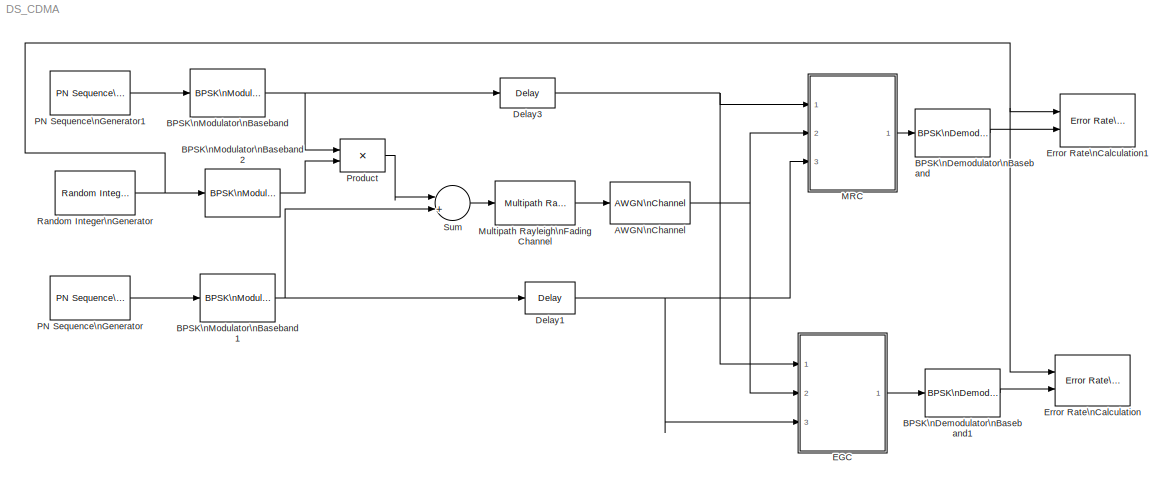
MODEL DS_CDMA
KIND model
BLOCK [Reference] AWGN\nChannel  REF=commchan2/AWGN\nChannel
  EbNodB = 10
  EsNodB = 10
  Ports = [1, 1]
  Ps = 1
  SNRdB = SNR
  ShowPortLabels = on
  SourceBlock = commchan2/AWGN\nChannel
  SourceType = AWGN Channel
  Tsym = 1e-4/32
  bitsPerSym = 1
  noiseMode = Signal to noise ratio  (SNR)
  seed = 67
  variance = 1
BLOCK [Reference] BPSK\nDemodulator\nBaseband  REF=commdigbbndpm2/BPSK\nDemodulator\nBaseband
  Ph = 0
  Ports = [1, 1]
  ShowPortLabels = on
  SourceBlock = commdigbbndpm2/BPSK\nDemodulator\nBaseband
  SourceType = BPSK Demodulator Baseband
  numSamp = 1
BLOCK [Reference] BPSK\nDemodulator\nBaseband1  REF=commdigbbndpm2/BPSK\nDemodulator\nBaseband
  Ph = 0
  Ports = [1, 1]
  ShowPortLabels = on
  SourceBlock = commdigbbndpm2/BPSK\nDemodulator\nBaseband
  SourceType = BPSK Demodulator Baseband
  numSamp = 1
BLOCK [Reference] BPSK\nModulator\nBaseband  REF=commdigbbndpm2/BPSK\nModulator\nBaseband
  Ph = 0
  Ports = [1, 1]
  ShowPortLabels = on
  SourceBlock = commdigbbndpm2/BPSK\nModulator\nBaseband
  SourceType = BPSK Modulator Baseband
  numSamp = 1
BLOCK [Reference] BPSK\nModulator\nBaseband1  REF=commdigbbndpm2/BPSK\nModulator\nBaseband
  Ph = 0
  Ports = [1, 1]
  ShowPortLabels = on
  SourceBlock = commdigbbndpm2/BPSK\nModulator\nBaseband
  SourceType = BPSK Modulator Baseband
  numSamp = 1
BLOCK [Reference] BPSK\nModulator\nBaseband2  REF=commdigbbndpm2/BPSK\nModulator\nBaseband
  Ph = 0
  Ports = [1, 1]
  ShowPortLabels = on
  SourceBlock = commdigbbndpm2/BPSK\nModulator\nBaseband
  SourceType = BPSK Modulator Baseband
  numSamp = 1
BLOCK [Reference] Delay1  REF=dspsigops/Delay
  Ports = [1, 1]
  SourceBlock = dspsigops/Delay
  SourceType = Delay
  delay = 32
  dif_ic_for_ch = off
  dif_ic_for_dly = off
  dly_unit = Samples
  ic = 0
  ic_detail = off
  reset_popup = None
BLOCK [Reference] Delay3  REF=dspsigops/Delay
  Ports = [1, 1]
  SourceBlock = dspsigops/Delay
  SourceType = Delay
  delay = 32
  dif_ic_for_ch = off
  dif_ic_for_dly = off
  dly_unit = Samples
  ic = 0
  ic_detail = off
  reset_popup = None
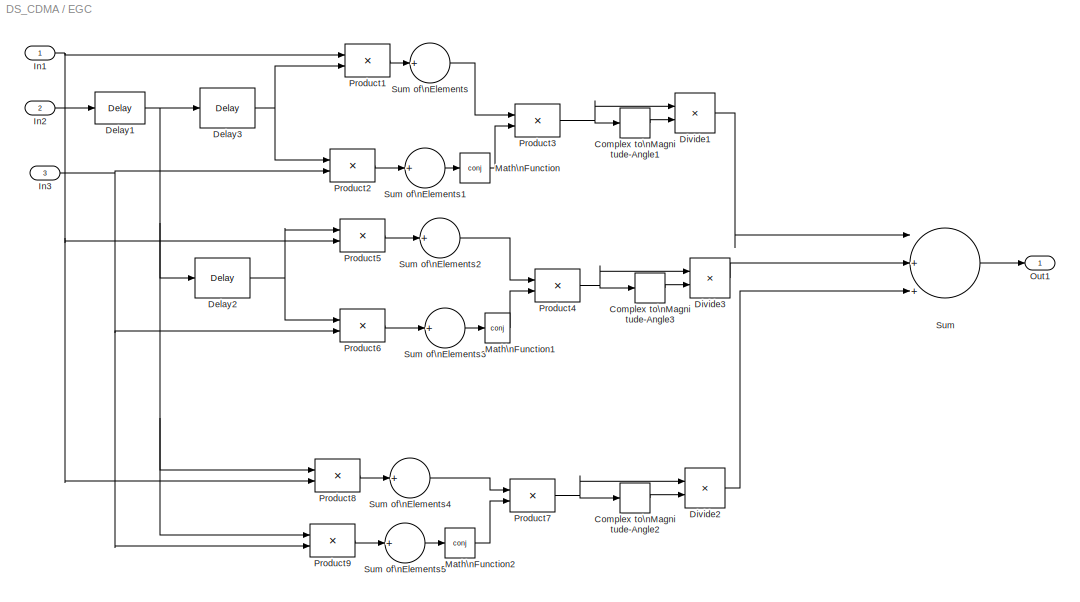
BLOCK [SubSystem] EGC
  MaskIconFrame = on
  MaskIconOpaque = on
  MaskIconRotate = none
  MaskIconUnits = autoscale
  MinAlgLoopOccurrences = off
  Ports = [3, 1]
  RTWSystemCode = Auto
  TreatAsAtomicUnit = off
BLOCK [ComplexToMagnitudeAngle] EGC/Complex to\nMagnitude-Angle1
  Output = Magnitude
  Ports = [1, 1]
BLOCK [ComplexToMagnitudeAngle] EGC/Complex to\nMagnitude-Angle2
  Output = Magnitude
  Ports = [1, 1]
BLOCK [ComplexToMagnitudeAngle] EGC/Complex to\nMagnitude-Angle3
  Output = Magnitude
  Ports = [1, 1]
BLOCK [Reference] EGC/Delay1  REF=dspsigops/Delay
  Ports = [1, 1]
  SourceBlock = dspsigops/Delay
  SourceType = Delay
  delay = 16
  dif_ic_for_ch = off
  dif_ic_for_dly = off
  dly_unit = Samples
  ic = 0
  ic_detail = off
  reset_popup = None
BLOCK [Reference] EGC/Delay2  REF=dspsigops/Delay
  Ports = [1, 1]
  SourceBlock = dspsigops/Delay
  SourceType = Delay
  delay = 8
  dif_ic_for_ch = off
  dif_ic_for_dly = off
  dly_unit = Samples
  ic = 0
  ic_detail = off
  reset_popup = None
BLOCK [Reference] EGC/Delay3  REF=dspsigops/Delay
  Ports = [1, 1]
  SourceBlock = dspsigops/Delay
  SourceType = Delay
  delay = 16
  dif_ic_for_ch = off
  dif_ic_for_dly = off
  dly_unit = Samples
  ic = 0
  ic_detail = off
  reset_popup = None
BLOCK [Product] EGC/Divide1
  InputSameDT = off
  Inputs = */
  OutScaling = 2^-10
  Ports = [2, 1]
  RndMeth = Floor
  SaturateOnIntegerOverflow = off
BLOCK [Product] EGC/Divide2
  InputSameDT = off
  Inputs = */
  OutScaling = 2^-10
  Ports = [2, 1]
  RndMeth = Floor
  SaturateOnIntegerOverflow = off
BLOCK [Product] EGC/Divide3
  InputSameDT = off
  Inputs = */
  OutScaling = 2^-10
  Ports = [2, 1]
  RndMeth = Floor
  SaturateOnIntegerOverflow = off
BLOCK [Inport] EGC/In1
  IconDisplay = Port number
  LatchInput = off
  Port = 1
BLOCK [Inport] EGC/In2
  IconDisplay = Port number
  LatchInput = off
  Port = 2
BLOCK [Inport] EGC/In3
  IconDisplay = Port number
  LatchInput = off
  Port = 3
BLOCK [Math] EGC/Math\nFunction
  Operator = conj
  Ports = [1, 1]
BLOCK [Math] EGC/Math\nFunction1
  Operator = conj
  Ports = [1, 1]
BLOCK [Math] EGC/Math\nFunction2
  Operator = conj
  Ports = [1, 1]
BLOCK [Outport] EGC/Out1
  BusOutputAsStruct = off
  IconDisplay = Port number
BLOCK [Product] EGC/Product1
  InputSameDT = off
  Ports = [2, 1]
  RndMeth = Floor
BLOCK [Product] EGC/Product2
  InputSameDT = off
  Ports = [2, 1]
  RndMeth = Floor
BLOCK [Product] EGC/Product3
  InputSameDT = off
  Ports = [2, 1]
  RndMeth = Floor
BLOCK [Product] EGC/Product4
  InputSameDT = off
  Ports = [2, 1]
  RndMeth = Floor
BLOCK [Product] EGC/Product5
  InputSameDT = off
  Ports = [2, 1]
  RndMeth = Floor
BLOCK [Product] EGC/Product6
  InputSameDT = off
  Ports = [2, 1]
  RndMeth = Floor
BLOCK [Product] EGC/Product7
  InputSameDT = off
  Ports = [2, 1]
  RndMeth = Floor
BLOCK [Product] EGC/Product8
  InputSameDT = off
  Ports = [2, 1]
  RndMeth = Floor
BLOCK [Product] EGC/Product9
  InputSameDT = off
  Ports = [2, 1]
  RndMeth = Floor
BLOCK [Sum] EGC/Sum
  InputSameDT = off
  Inputs = |+++
  Ports = [3, 1]
BLOCK [Sum] EGC/Sum of\nElements
  InputSameDT = off
  Inputs = +
  OutScaling = 2^-10
  Ports = [1, 1]
  SaturateOnIntegerOverflow = off
BLOCK [Sum] EGC/Sum of\nElements1
  InputSameDT = off
  Inputs = +
  OutScaling = 2^-10
  Ports = [1, 1]
  SaturateOnIntegerOverflow = off
BLOCK [Sum] EGC/Sum of\nElements2
  InputSameDT = off
  Inputs = +
  OutScaling = 2^-10
  Ports = [1, 1]
  SaturateOnIntegerOverflow = off
BLOCK [Sum] EGC/Sum of\nElements3
  InputSameDT = off
  Inputs = +
  OutScaling = 2^-10
  Ports = [1, 1]
  SaturateOnIntegerOverflow = off
BLOCK [Sum] EGC/Sum of\nElements4
  InputSameDT = off
  Inputs = +
  OutScaling = 2^-10
  Ports = [1, 1]
  SaturateOnIntegerOverflow = off
BLOCK [Sum] EGC/Sum of\nElements5
  InputSameDT = off
  Inputs = +
  OutScaling = 2^-10
  Ports = [1, 1]
  SaturateOnIntegerOverflow = off
BLOCK [Reference] Error Rate\nCalculation  REF=commsink2/Error Rate\nCalculation
  N = 1
  PMode = Workspace
  Ports = [2]
  RsMode2 = off
  SourceBlock = commsink2/Error Rate\nCalculation
  SourceType = Error Rate Calculation
  WsName = BitErrorRate2
  cp_mode = Entire frame
  maxBits = 1e6
  numErr = 100
  st_delay = 0
  stop = off
  subframe = []
BLOCK [Reference] Error Rate\nCalculation1  REF=commsink2/Error Rate\nCalculation
  N = 1
  PMode = Workspace
  Ports = [2]
  RsMode2 = off
  SourceBlock = commsink2/Error Rate\nCalculation
  SourceType = Error Rate Calculation
  WsName = BitErrorRate1
  cp_mode = Entire frame
  maxBits = 1e6
  numErr = 100
  st_delay = 0
  stop = off
  subframe = []
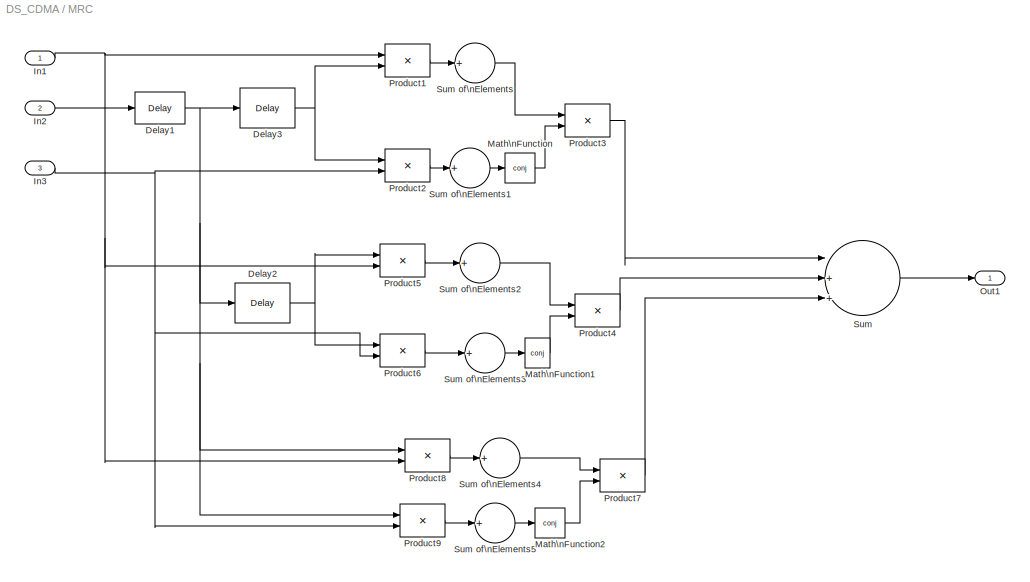
BLOCK [SubSystem] MRC
  MaskIconFrame = on
  MaskIconOpaque = on
  MaskIconRotate = none
  MaskIconUnits = autoscale
  MinAlgLoopOccurrences = off
  Ports = [3, 1]
  RTWSystemCode = Auto
  TreatAsAtomicUnit = off
BLOCK [Reference] MRC/Delay1  REF=dspsigops/Delay
  Ports = [1, 1]
  SourceBlock = dspsigops/Delay
  SourceType = Delay
  delay = 16
  dif_ic_for_ch = off
  dif_ic_for_dly = off
  dly_unit = Samples
  ic = 0
  ic_detail = off
  reset_popup = None
BLOCK [Reference] MRC/Delay2  REF=dspsigops/Delay
  Ports = [1, 1]
  SourceBlock = dspsigops/Delay
  SourceType = Delay
  delay = 8
  dif_ic_for_ch = off
  dif_ic_for_dly = off
  dly_unit = Samples
  ic = 0
  ic_detail = off
  reset_popup = None
BLOCK [Reference] MRC/Delay3  REF=dspsigops/Delay
  Ports = [1, 1]
  SourceBlock = dspsigops/Delay
  SourceType = Delay
  delay = 16
  dif_ic_for_ch = off
  dif_ic_for_dly = off
  dly_unit = Samples
  ic = 0
  ic_detail = off
  reset_popup = None
BLOCK [Inport] MRC/In1
  IconDisplay = Port number
  LatchInput = off
  Port = 1
BLOCK [Inport] MRC/In2
  IconDisplay = Port number
  LatchInput = off
  Port = 2
BLOCK [Inport] MRC/In3
  IconDisplay = Port number
  LatchInput = off
  Port = 3
BLOCK [Math] MRC/Math\nFunction
  Operator = conj
  Ports = [1, 1]
BLOCK [Math] MRC/Math\nFunction1
  Operator = conj
  Ports = [1, 1]
BLOCK [Math] MRC/Math\nFunction2
  Operator = conj
  Ports = [1, 1]
BLOCK [Outport] MRC/Out1
  BusOutputAsStruct = off
  IconDisplay = Port number
BLOCK [Product] MRC/Product1
  InputSameDT = off
  Ports = [2, 1]
  RndMeth = Floor
BLOCK [Product] MRC/Product2
  InputSameDT = off
  Ports = [2, 1]
  RndMeth = Floor
BLOCK [Product] MRC/Product3
  InputSameDT = off
  Ports = [2, 1]
  RndMeth = Floor
BLOCK [Product] MRC/Product4
  InputSameDT = off
  Ports = [2, 1]
  RndMeth = Floor
BLOCK [Product] MRC/Product5
  InputSameDT = off
  Ports = [2, 1]
  RndMeth = Floor
BLOCK [Product] MRC/Product6
  InputSameDT = off
  Ports = [2, 1]
  RndMeth = Floor
BLOCK [Product] MRC/Product7
  InputSameDT = off
  Ports = [2, 1]
  RndMeth = Floor
BLOCK [Product] MRC/Product8
  InputSameDT = off
  Ports = [2, 1]
  RndMeth = Floor
BLOCK [Product] MRC/Product9
  InputSameDT = off
  Ports = [2, 1]
  RndMeth = Floor
BLOCK [Sum] MRC/Sum
  InputSameDT = off
  Inputs = |+++
  Ports = [3, 1]
BLOCK [Sum] MRC/Sum of\nElements
  InputSameDT = off
  Inputs = +
  OutScaling = 2^-10
  Ports = [1, 1]
  SaturateOnIntegerOverflow = off
BLOCK [Sum] MRC/Sum of\nElements1
  InputSameDT = off
  Inputs = +
  OutScaling = 2^-10
  Ports = [1, 1]
  SaturateOnIntegerOverflow = off
BLOCK [Sum] MRC/Sum of\nElements2
  InputSameDT = off
  Inputs = +
  OutScaling = 2^-10
  Ports = [1, 1]
  SaturateOnIntegerOverflow = off
BLOCK [Sum] MRC/Sum of\nElements3
  InputSameDT = off
  Inputs = +
  OutScaling = 2^-10
  Ports = [1, 1]
  SaturateOnIntegerOverflow = off
BLOCK [Sum] MRC/Sum of\nElements4
  InputSameDT = off
  Inputs = +
  OutScaling = 2^-10
  Ports = [1, 1]
  SaturateOnIntegerOverflow = off
BLOCK [Sum] MRC/Sum of\nElements5
  InputSameDT = off
  Inputs = +
  OutScaling = 2^-10
  Ports = [1, 1]
  SaturateOnIntegerOverflow = off
BLOCK [Reference] Multipath Rayleigh\nFading Channel  REF=commchan2/Multipath Rayleigh\nFading Channel
  Fd = 100
  Ports = [1, 1]
  Seed = 73
  ShowPortLabels = on
  SourceBlock = commchan2/Multipath Rayleigh\nFading Channel
  SourceType = Multipath Rayleigh Fading Channel
  delayVec = [0 8e-4/32 16e-4/32]
  gainVecdB = [0 -3 -6]
  normGain = on
  simTs = 1e-4/32
BLOCK [Reference] PN Sequence\nGenerator  REF=commseqgen2/PN Sequence\nGenerator
  Ports = [0, 1]
  SourceBlock = commseqgen2/PN Sequence\nGenerator
  SourceType = PN Sequence Generator
  Ts = 1e-4/32
  frameBased = on
  ini_sta = [0 0 1 0 0 0 1 0 0 0 1 0 0 0 1]
  poly = [15 13 12 10 9 8 7 5 4 1 0]
  reset = off
  sampPerFrame = 32
  shift = 0
BLOCK [Reference] PN Sequence\nGenerator1  REF=commseqgen2/PN Sequence\nGenerator
  Ports = [0, 1]
  SourceBlock = commseqgen2/PN Sequence\nGenerator
  SourceType = PN Sequence Generator
  Ts = 1e-4/32
  frameBased = on
  ini_sta = [1 0 0 0 1 0 0 0 1 0 0 0 1 0 0]
  poly = [15 14 10 7 6 2 0]
  reset = off
  sampPerFrame = 32
  shift = 0
BLOCK [Product] Product
  InputSameDT = off
  Ports = [2, 1]
  RndMeth = Floor
BLOCK [Reference] Random Integer\nGenerator  REF=commrandsrc2/Random Integer\nGenerator
  Ports = [0, 1]
  ShowPortLabels = on
  SourceBlock = commrandsrc2/Random Integer\nGenerator
  SourceType = Random Integer Generator
  Ts = 1e-4
  frameBased = on
  mul = 2
  orient = off
  sampPerFrame = 1
  seed = 37
BLOCK [Sum] Sum
  InputSameDT = off
  Inputs = |++
  OutDataTypeMode = Inherit via internal rule
  Ports = [2, 1]
NET AWGN\nChannel:1 -> EGC:2, MRC:2
LINE BPSK\nDemodulator\nBaseband1:1 -> Error Rate\nCalculation:2
LINE BPSK\nDemodulator\nBaseband:1 -> Error Rate\nCalculation1:2
NET BPSK\nModulator\nBaseband1:1 -> Delay1:1, Sum:2
LINE BPSK\nModulator\nBaseband2:1 -> Product:2
NET BPSK\nModulator\nBaseband:1 -> Delay3:1, Product:1
NET Delay1:1 -> EGC:3, MRC:3
NET Delay3:1 -> EGC:1, MRC:1
LINE EGC/Complex to\nMagnitude-Angle1:1 -> EGC/Divide1:2
LINE EGC/Complex to\nMagnitude-Angle2:1 -> EGC/Divide2:2
LINE EGC/Complex to\nMagnitude-Angle3:1 -> EGC/Divide3:2
NET EGC/Delay1:1 -> EGC/Delay2:1, EGC/Delay3:1, EGC/Product8:1, EGC/Product9:1
NET EGC/Delay2:1 -> EGC/Product5:1, EGC/Product6:1
NET EGC/Delay3:1 -> EGC/Product1:2, EGC/Product2:1
LINE EGC/Divide1:1 -> EGC/Sum:1
LINE EGC/Divide2:1 -> EGC/Sum:3
LINE EGC/Divide3:1 -> EGC/Sum:2
NET EGC/In1:1 -> EGC/Product1:1, EGC/Product5:2, EGC/Product8:2
LINE EGC/In2:1 -> EGC/Delay1:1
NET EGC/In3:1 -> EGC/Product2:2, EGC/Product6:2, EGC/Product9:2
LINE EGC/Math\nFunction1:1 -> EGC/Product4:2
LINE EGC/Math\nFunction2:1 -> EGC/Product7:2
LINE EGC/Math\nFunction:1 -> EGC/Product3:2
LINE EGC/Product1:1 -> EGC/Sum of\nElements:1
LINE EGC/Product2:1 -> EGC/Sum of\nElements1:1
NET EGC/Product3:1 -> EGC/Complex to\nMagnitude-Angle1:1, EGC/Divide1:1
NET EGC/Product4:1 -> EGC/Complex to\nMagnitude-Angle3:1, EGC/Divide3:1
LINE EGC/Product5:1 -> EGC/Sum of\nElements2:1
LINE EGC/Product6:1 -> EGC/Sum of\nElements3:1
NET EGC/Product7:1 -> EGC/Complex to\nMagnitude-Angle2:1, EGC/Divide2:1
LINE EGC/Product8:1 -> EGC/Sum of\nElements4:1
LINE EGC/Product9:1 -> EGC/Sum of\nElements5:1
LINE EGC/Sum of\nElements1:1 -> EGC/Math\nFunction:1
LINE EGC/Sum of\nElements2:1 -> EGC/Product4:1
LINE EGC/Sum of\nElements3:1 -> EGC/Math\nFunction1:1
LINE EGC/Sum of\nElements4:1 -> EGC/Product7:1
LINE EGC/Sum of\nElements5:1 -> EGC/Math\nFunction2:1
LINE EGC/Sum of\nElements:1 -> EGC/Product3:1
LINE EGC/Sum:1 -> EGC/Out1:1
LINE EGC:1 -> BPSK\nDemodulator\nBaseband1:1
NET MRC/Delay1:1 -> MRC/Delay2:1, MRC/Delay3:1, MRC/Product8:1, MRC/Product9:1
NET MRC/Delay2:1 -> MRC/Product5:1, MRC/Product6:1
NET MRC/Delay3:1 -> MRC/Product1:2, MRC/Product2:1
NET MRC/In1:1 -> MRC/Product1:1, MRC/Product5:2, MRC/Product8:2
LINE MRC/In2:1 -> MRC/Delay1:1
NET MRC/In3:1 -> MRC/Product2:2, MRC/Product6:2, MRC/Product9:2
LINE MRC/Math\nFunction1:1 -> MRC/Product4:2
LINE MRC/Math\nFunction2:1 -> MRC/Product7:2
LINE MRC/Math\nFunction:1 -> MRC/Product3:2
LINE MRC/Product1:1 -> MRC/Sum of\nElements:1
LINE MRC/Product2:1 -> MRC/Sum of\nElements1:1
LINE MRC/Product3:1 -> MRC/Sum:1
LINE MRC/Product4:1 -> MRC/Sum:2
LINE MRC/Product5:1 -> MRC/Sum of\nElements2:1
LINE MRC/Product6:1 -> MRC/Sum of\nElements3:1
LINE MRC/Product7:1 -> MRC/Sum:3
LINE MRC/Product8:1 -> MRC/Sum of\nElements4:1
LINE MRC/Product9:1 -> MRC/Sum of\nElements5:1
LINE MRC/Sum of\nElements1:1 -> MRC/Math\nFunction:1
LINE MRC/Sum of\nElements2:1 -> MRC/Product4:1
LINE MRC/Sum of\nElements3:1 -> MRC/Math\nFunction1:1
LINE MRC/Sum of\nElements4:1 -> MRC/Product7:1
LINE MRC/Sum of\nElements5:1 -> MRC/Math\nFunction2:1
LINE MRC/Sum of\nElements:1 -> MRC/Product3:1
LINE MRC/Sum:1 -> MRC/Out1:1
LINE MRC:1 -> BPSK\nDemodulator\nBaseband:1
LINE Multipath Rayleigh\nFading Channel:1 -> AWGN\nChannel:1
LINE PN Sequence\nGenerator1:1 -> BPSK\nModulator\nBaseband:1
LINE PN Sequence\nGenerator:1 -> BPSK\nModulator\nBaseband1:1
LINE Product:1 -> Sum:1
NET Random Integer\nGenerator:1 -> BPSK\nModulator\nBaseband2:1, Error Rate\nCalculation1:1, Error Rate\nCalculation:1
LINE Sum:1 -> Multipath Rayleigh\nFading Channel:1
note: NET lines group one-source signal fan-out (src -> all destinations, sorted); 1:1 wires keep LINE
